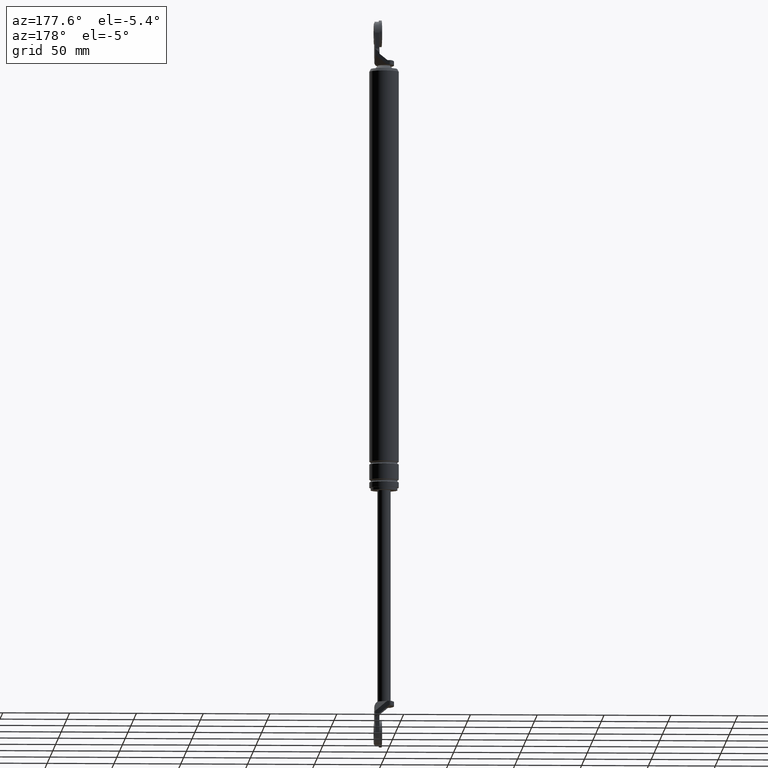
[diagram: clean part render]
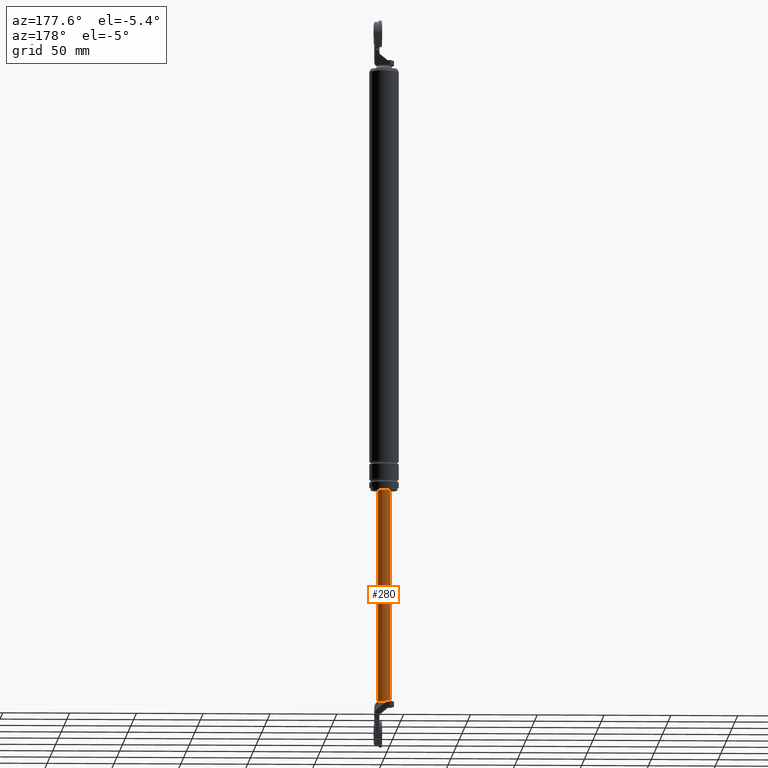
[diagram: same view with one face highlighted and labeled with its STEP entity id]
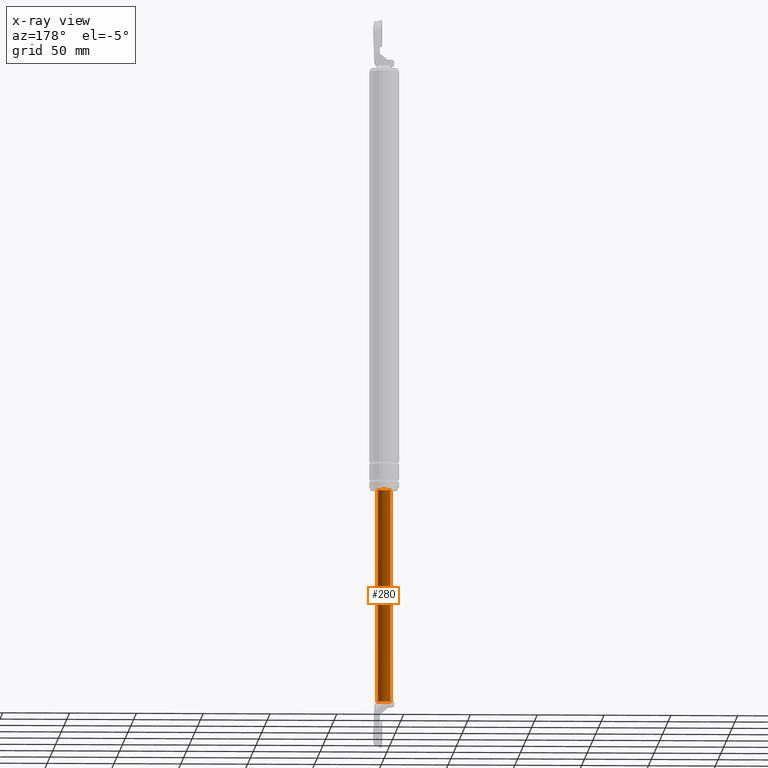
[diagram: x-ray of the same camera — body ghosted, the highlighted face saturated]
A machine part, auxiliary view. The second image highlights one B-rep face of the part: STEP entity #280.
The next image is the same camera in x-ray: the body ghosted, the highlighted face saturated — about 0% of this face is hidden behind the body in this view.
In plain terms, the highlighted cylindrical surface (edge-blend (fillet) strip) has radius 5 mm, axis along (0, 0, 1).
Its self-contained STEP definition (entity closure, byte-faithful):
#280=ADVANCED_FACE('',(#1055),#1054,.T.);
#1054=CYLINDRICAL_SURFACE('',#1659,5.00000000000E+000);
#1055=FACE_OUTER_BOUND('',#1660,.T.);
#1656=CARTESIAN_POINT('',(0.00000000000E+000,0.00000000000E+000,0.00000000000E+000));
#1657=DIRECTION('',(-0.00000000000E+000,-0.00000000000E+000,1.00000000000E+000));
#1658=DIRECTION('',(1.00000000000E+000,-0.00000000000E+000,-0.00000000000E+000));
#1659=AXIS2_PLACEMENT_3D('',#1656,#1657,#1658);
#1660=EDGE_LOOP('',(#2042,#2043,#2044,#2045,#2046));
#2042=ORIENTED_EDGE('',*,*,#2239,.T.);
#2043=ORIENTED_EDGE('',*,*,#2248,.F.);
#2044=ORIENTED_EDGE('',*,*,#2217,.F.);
#2045=ORIENTED_EDGE('',*,*,#2247,.F.);
#2046=ORIENTED_EDGE('',*,*,#2249,.T.);
#2217=EDGE_CURVE('',#3292,#3299,#3300,.T.);
#2239=EDGE_CURVE('',#3437,#3436,#3444,.T.);
#2247=EDGE_CURVE('',#3489,#3292,#3496,.T.);
#2248=EDGE_CURVE('',#3299,#3436,#3502,.T.);
#2249=EDGE_CURVE('',#3489,#3437,#3508,.T.);
#3292=VERTEX_POINT('',#4159);
#3299=VERTEX_POINT('',#4164);
#3300=CIRCLE('',#4168,5.00000000000E+000);
#3436=VERTEX_POINT('',#4242);
#3437=VERTEX_POINT('',#4243);
#3444=CIRCLE('',#4251,5.00000000000E+000);
#3489=VERTEX_POINT('',#4277);
#3496=CIRCLE('',#4285,5.00000000000E+000);
#3502=(BOUNDED_CURVE() B_SPLINE_CURVE(1,(#4286,#4287),.UNSPECIFIED.,.F.,.F.) B_SPLINE_CURVE_WITH_KNOTS((2,2),(5.58659171684E-002,9.44134083014E-001),.UNSPECIFIED.) CURVE() GEOMETRIC_REPRESENTATION_ITEM() RATIONAL_B_SPLINE_CURVE((1.00000000000E+000,1.00000000000E+000)) REPRESENTATION_ITEM('') );
#3508=(BOUNDED_CURVE() B_SPLINE_CURVE(1,(#4288,#4289),.UNSPECIFIED.,.F.,.F.) B_SPLINE_CURVE_WITH_KNOTS((2,2),(5.58659171062E-002,9.44134082894E-001),.UNSPECIFIED.) CURVE() GEOMETRIC_REPRESENTATION_ITEM() RATIONAL_B_SPLINE_CURVE((7.50000000000E-001,7.50000000000E-001)) REPRESENTATION_ITEM('') );
#4159=CARTESIAN_POINT('',(4.00000000000E+000,3.00000000000E+000,-1.09000015000E+002));
#4164=CARTESIAN_POINT('',(5.00000000000E+000,1.48029736617E-015,-1.09000015000E+002));
#4165=CARTESIAN_POINT('',(0.00000000000E+000,0.00000000000E+000,-1.09000015000E+002));
#4166=DIRECTION('',(0.00000000000E+000,0.00000000000E+000,-1.00000000000E+000));
#4167=DIRECTION('',(8.00000000000E-001,6.00000000000E-001,0.00000000000E+000));
#4168=AXIS2_PLACEMENT_3D('',#4165,#4166,#4167);
#4242=CARTESIAN_POINT('',(5.00000000000E+000,2.96059473233E-016,5.00000000000E+001));
#4243=CARTESIAN_POINT('',(-5.00000000000E+000,0.00000000000E+000,5.00000000000E+001));
#4248=CARTESIAN_POINT('',(0.00000000000E+000,0.00000000000E+000,5.00000000000E+001));
#4249=DIRECTION('',(-0.00000000000E+000,0.00000000000E+000,-1.00000000000E+000));
#4250=DIRECTION('',(-1.00000000000E+000,-1.22460635382E-016,0.00000000000E+000));
#4251=AXIS2_PLACEMENT_3D('',#4248,#4249,#4250);
#4277=CARTESIAN_POINT('',(-5.00000000000E+000,6.36320440279E-009,-1.09000015000E+002));
#4282=CARTESIAN_POINT('',(0.00000000000E+000,0.00000000000E+000,-1.09000015000E+002));
#4283=DIRECTION('',(0.00000000000E+000,0.00000000000E+000,-1.00000000000E+000));
#4284=DIRECTION('',(1.00000000000E+000,-0.00000000000E+000,-0.00000000000E+000));
#4285=AXIS2_PLACEMENT_3D('',#4282,#4283,#4284);
#4286=CARTESIAN_POINT('',(5.00000000000E+000,0.00000000000E+000,-1.09000014989E+002));
#4287=CARTESIAN_POINT('',(5.00000000000E+000,0.00000000000E+000,5.00000000215E+001));
#4288=CARTESIAN_POINT('',(-5.00000000000E+000,-2.96059473233E-016,-1.09000015000E+002));
#4289=CARTESIAN_POINT('',(-5.00000000000E+000,-2.96059473233E-016,5.00000000000E+001));